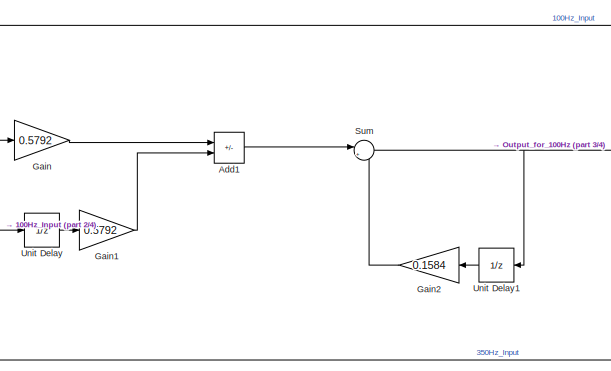
[diagram: root canvas - part 1/4, top left region]
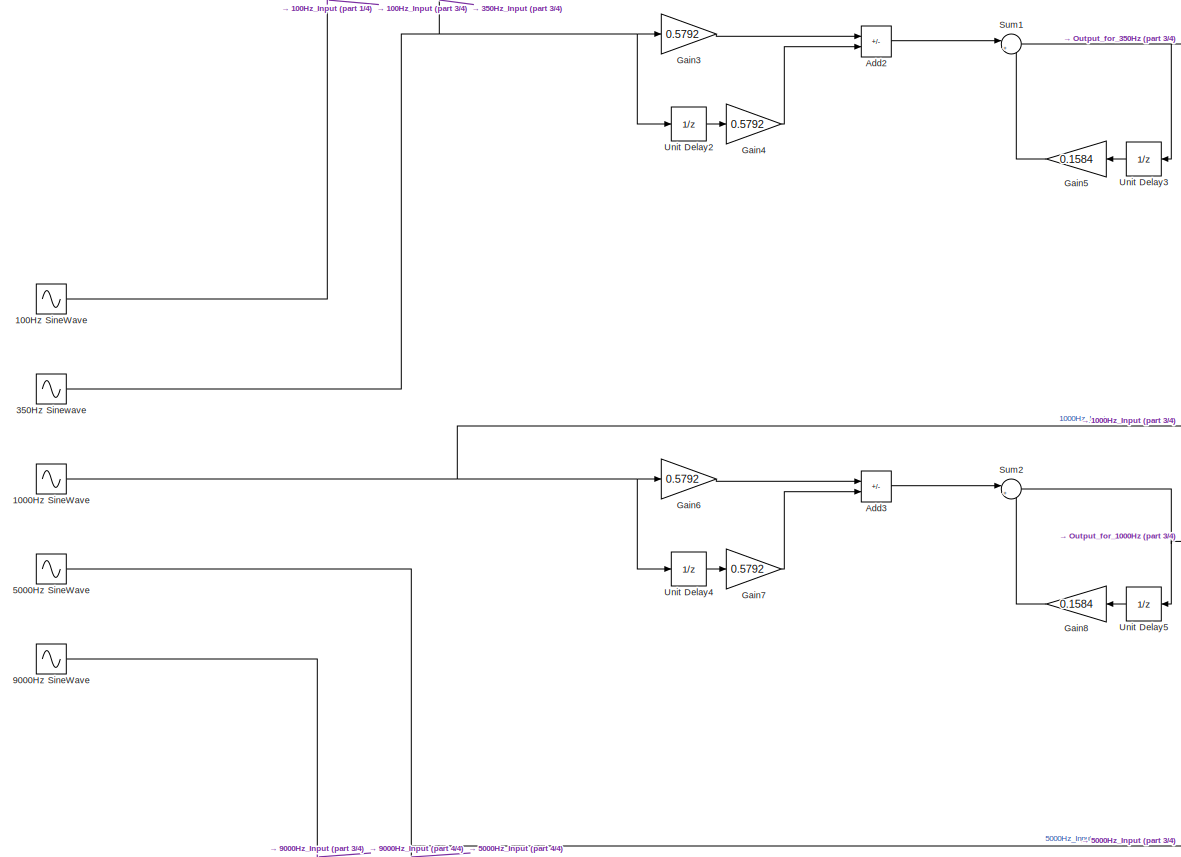
[diagram: root canvas - part 2/4, middle left region]
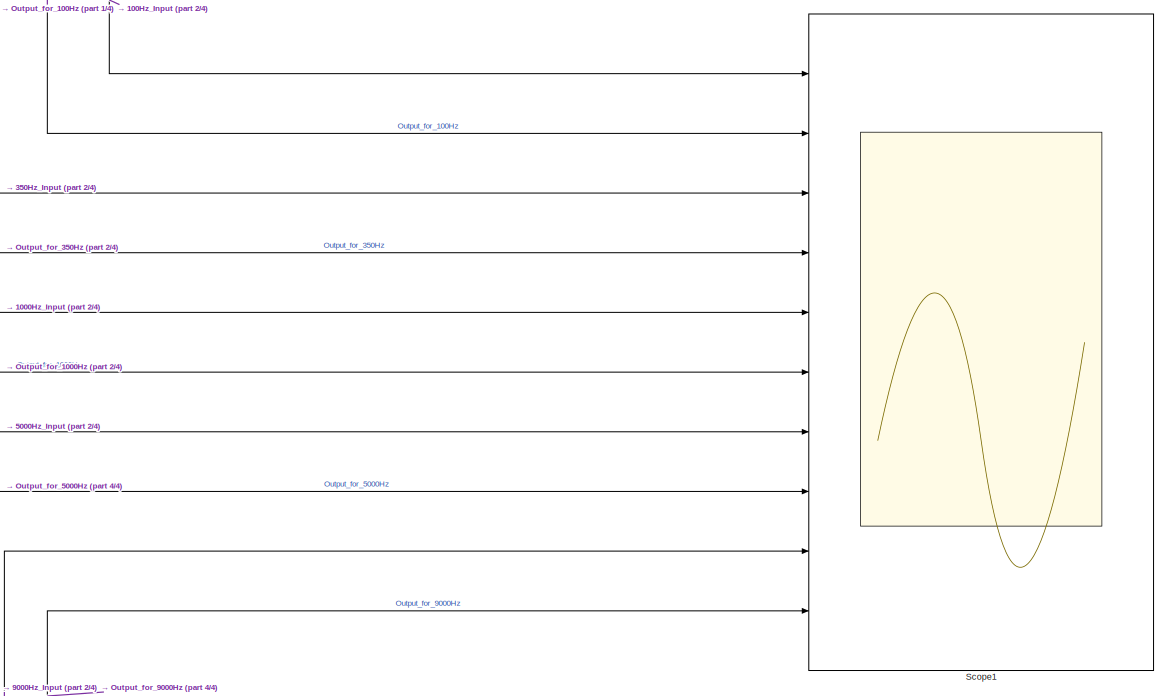
[diagram: root canvas - part 3/4, middle right region]
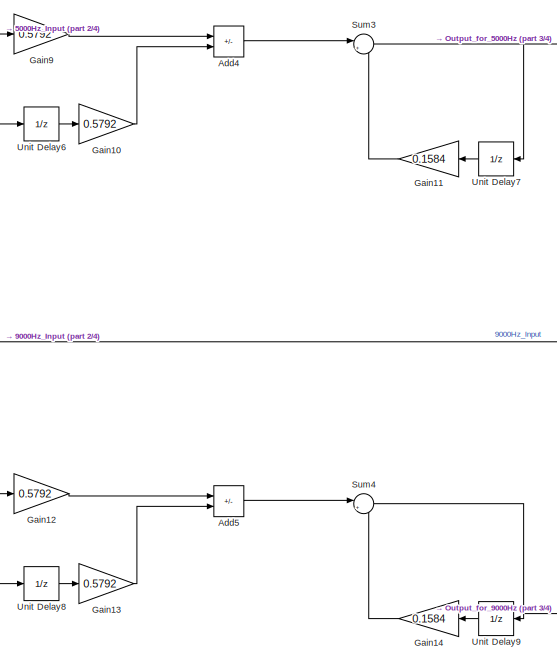
[diagram: root canvas - part 4/4, bottom left region]
MODEL slx_e9517629ef57
KIND model
CONFIG AbsTol = auto
CONFIG EnableMultiTasking = off
CONFIG FixedStep = auto
CONFIG MaxStep = auto
CONFIG MinStep = auto
CONFIG RelTol = 1e-3
CONFIG SampleTimeConstraint = Unconstrained
CONFIG SolverName = VariableStepAuto
CONFIG StartTime = 0.0
CONFIG StopTime = 10.0
BLOCK [Sin] 1000Hz SineWave
  Frequency = 2*pi*1000
  Ports = [0, 1]
  SampleTime = 0
BLOCK [Sin] 100Hz SineWave
  Frequency = 2*pi*100
  Ports = [0, 1]
  SampleTime = 0
BLOCK [Sin] 350Hz Sinewave
  Frequency = 2*pi*350
  Ports = [0, 1]
  SampleTime = 0
BLOCK [Sin] 5000Hz SineWave
  Frequency = 2*pi*5000
  Ports = [0, 1]
  SampleTime = 0
BLOCK [Sin] 9000Hz SineWave
  Frequency = 2*pi*9000
  Ports = [0, 1]
  SampleTime = 0
BLOCK [Sum] Add1
  IconShape = rectangular
  Inputs = +-
  Ports = [2, 1]
BLOCK [Sum] Add2
  IconShape = rectangular
  Inputs = +-
  Ports = [2, 1]
BLOCK [Sum] Add3
  IconShape = rectangular
  Inputs = +-
  Ports = [2, 1]
BLOCK [Sum] Add4
  IconShape = rectangular
  Inputs = +-
  Ports = [2, 1]
BLOCK [Sum] Add5
  IconShape = rectangular
  Inputs = +-
  Ports = [2, 1]
BLOCK [Gain] Gain
  Gain = 0.5792
BLOCK [Gain] Gain1
  Gain = 0.5792
BLOCK [Gain] Gain10
  Gain = 0.5792
BLOCK [Gain] Gain11
  Gain = 0.1584
  NameLocation = top
BLOCK [Gain] Gain12
  Gain = 0.5792
BLOCK [Gain] Gain13
  Gain = 0.5792
BLOCK [Gain] Gain14
  Gain = 0.1584
  NameLocation = top
BLOCK [Gain] Gain2
  Gain = 0.1584
  NameLocation = top
BLOCK [Gain] Gain3
  Gain = 0.5792
BLOCK [Gain] Gain4
  Gain = 0.5792
BLOCK [Gain] Gain5
  Gain = 0.1584
  NameLocation = top
BLOCK [Gain] Gain6
  Gain = 0.5792
BLOCK [Gain] Gain7
  Gain = 0.5792
BLOCK [Gain] Gain8
  Gain = 0.1584
  NameLocation = top
BLOCK [Gain] Gain9
  Gain = 0.5792
BLOCK [Scope] Scope1
  Floating = off
  NumInputPorts = 10
  Ports = [10]
  ScopeSpecificationString = Simulink.scopes.TimeScopeBlockCfg('CurrentConfiguration', extmgr.ConfigurationSet(extmgr.Configuration('Core','General UI',true,'DisplayFullSourceName',true),extmgr.Configuration('Core','Source UI',true),extmgr.Configuration('Sources','WiredSimulink',true),extmgr.Configuration('Visuals','Time Domain',true,'SerializedDisplays',{struct('MinYLimReal','-1.24992','MaxYLimReal','1.24992','YLabelReal',''...<+8851ch>
BLOCK [Sum] Sum
  Inputs = |++
  Ports = [2, 1]
BLOCK [Sum] Sum1
  Inputs = |++
  Ports = [2, 1]
BLOCK [Sum] Sum2
  Inputs = |++
  Ports = [2, 1]
BLOCK [Sum] Sum3
  Inputs = |++
  Ports = [2, 1]
BLOCK [Sum] Sum4
  Inputs = |++
  Ports = [2, 1]
BLOCK [UnitDelay] Unit Delay
  HasFrameUpgradeWarning = on
  SampleTime = -1
BLOCK [UnitDelay] Unit Delay1
  HasFrameUpgradeWarning = on
  NameLocation = top
  SampleTime = -1
BLOCK [UnitDelay] Unit Delay2
  HasFrameUpgradeWarning = on
  SampleTime = -1
BLOCK [UnitDelay] Unit Delay3
  HasFrameUpgradeWarning = on
  NameLocation = top
  SampleTime = -1
BLOCK [UnitDelay] Unit Delay4
  HasFrameUpgradeWarning = on
  SampleTime = -1
BLOCK [UnitDelay] Unit Delay5
  HasFrameUpgradeWarning = on
  NameLocation = top
  SampleTime = -1
BLOCK [UnitDelay] Unit Delay6
  HasFrameUpgradeWarning = on
  SampleTime = -1
BLOCK [UnitDelay] Unit Delay7
  HasFrameUpgradeWarning = on
  NameLocation = top
  SampleTime = -1
BLOCK [UnitDelay] Unit Delay8
  HasFrameUpgradeWarning = on
  SampleTime = -1
BLOCK [UnitDelay] Unit Delay9
  HasFrameUpgradeWarning = on
  NameLocation = top
  SampleTime = -1
NET 1000Hz SineWave:1 -> Gain6:1, Scope1:5, Unit Delay4:1
NET 100Hz SineWave:1 -> Gain:1, Scope1:1, Unit Delay:1
NET 350Hz Sinewave:1 -> Gain3:1, Scope1:3, Unit Delay2:1
NET 5000Hz SineWave:1 -> Gain9:1, Scope1:7, Unit Delay6:1
NET 9000Hz SineWave:1 -> Gain12:1, Scope1:9, Unit Delay8:1
LINE Add1:1 -> Sum:1
LINE Add2:1 -> Sum1:1
LINE Add3:1 -> Sum2:1
LINE Add4:1 -> Sum3:1
LINE Add5:1 -> Sum4:1
LINE Gain10:1 -> Add4:2
LINE Gain11:1 -> Sum3:2
LINE Gain12:1 -> Add5:1
LINE Gain13:1 -> Add5:2
LINE Gain14:1 -> Sum4:2
LINE Gain1:1 -> Add1:2
LINE Gain2:1 -> Sum:2
LINE Gain3:1 -> Add2:1
LINE Gain4:1 -> Add2:2
LINE Gain5:1 -> Sum1:2
LINE Gain6:1 -> Add3:1
LINE Gain7:1 -> Add3:2
LINE Gain8:1 -> Sum2:2
LINE Gain9:1 -> Add4:1
LINE Gain:1 -> Add1:1
NET Sum1:1 -> Scope1:4, Unit Delay3:1
NET Sum2:1 -> Scope1:6, Unit Delay5:1
NET Sum3:1 -> Scope1:8, Unit Delay7:1
NET Sum4:1 -> Scope1:10, Unit Delay9:1
NET Sum:1 -> Scope1:2, Unit Delay1:1
LINE Unit Delay1:1 -> Gain2:1
LINE Unit Delay2:1 -> Gain4:1
LINE Unit Delay3:1 -> Gain5:1
LINE Unit Delay4:1 -> Gain7:1
LINE Unit Delay5:1 -> Gain8:1
LINE Unit Delay6:1 -> Gain10:1
LINE Unit Delay7:1 -> Gain11:1
LINE Unit Delay8:1 -> Gain13:1
LINE Unit Delay9:1 -> Gain14:1
LINE Unit Delay:1 -> Gain1:1
note: NET lines group one-source signal fan-out (src -> all destinations, sorted); 1:1 wires keep LINE
